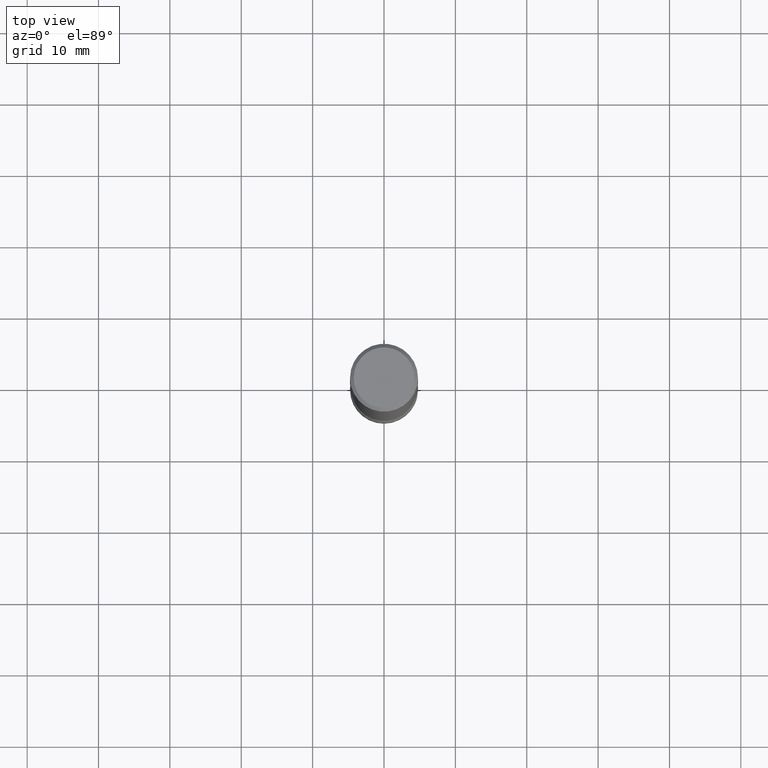
[diagram: clean part render]
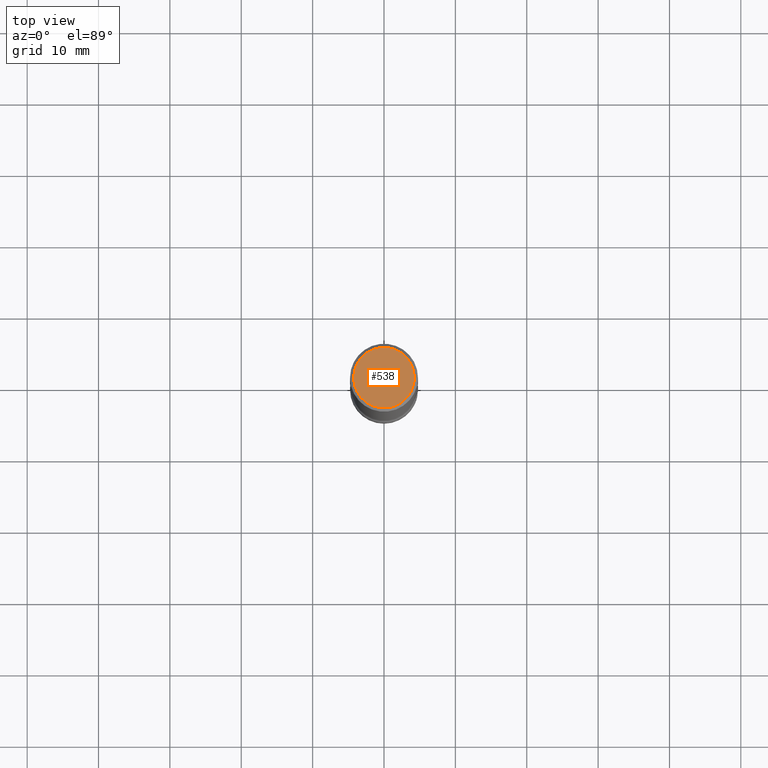
[diagram: same view with one face highlighted and labeled with its STEP entity id]
A machine part, top view. The second image highlights one B-rep face of the part: STEP entity #538.
In plain terms, the highlighted planar face has unit normal (-0, 0, 1).
Its self-contained STEP definition (entity closure, byte-faithful):
#1 = AXIS2_PLACEMENT_3D ( 'NONE', #479, #254, #519 ) ;
#19 = DIRECTION ( 'NONE',  ( -2.438088387897960049E-29, 3.491481338843145188E-15, 1.000000000000000000 ) ) ;
#52 = ORIENTED_EDGE ( 'NONE', *, *, #416, .F. ) ;
#63 = DIRECTION ( 'NONE',  ( 1.000000000000000000, -6.982962677686265922E-15, 4.876176775795935793E-29 ) ) ;
#84 = AXIS2_PLACEMENT_3D ( 'NONE', #330, #19, #63 ) ;
#101 = CARTESIAN_POINT ( 'NONE',  ( -0.1674999999999997602, 1.169646248512447820E-15, -8.167596099458180682E-30 ) ) ;
#105 = VERTEX_POINT ( 'NONE', #282 ) ;
#112 = VERTEX_POINT ( 'NONE', #101 ) ;
#133 = DIRECTION ( 'NONE',  ( 2.445468806185136597E-29, -3.491481338843145583E-15, -1.000000000000000000 ) ) ;
#143 = CIRCLE ( 'NONE', #534, 0.1674999999999997602 ) ;
#223 = EDGE_CURVE ( 'NONE', #112, #105, #367, .T. ) ;
#254 = DIRECTION ( 'NONE',  ( 2.445468806185136597E-29, -3.491481338843145583E-15, -1.000000000000000000 ) ) ;
#282 = CARTESIAN_POINT ( 'NONE',  ( 0.1674999999999997602, -1.252653207992876119E-15, 8.469775550109225372E-30 ) ) ;
#305 = DIRECTION ( 'NONE',  ( -1.000000000000000000, 6.982962677686265922E-15, -4.876176775795935793E-29 ) ) ;
#320 = EDGE_LOOP ( 'NONE', ( #448, #52 ) ) ;
#330 = CARTESIAN_POINT ( 'NONE',  ( 1.169646248512447820E-15, 0.1674999999999997602, -5.826888680111757675E-16 ) ) ;
#367 = CIRCLE ( 'NONE', #1, 0.1674999999999997602 ) ;
#416 = EDGE_CURVE ( 'NONE', #105, #112, #143, .T. ) ;
#448 = ORIENTED_EDGE ( 'NONE', *, *, #223, .F. ) ;
#454 = FACE_OUTER_BOUND ( 'NONE', #320, .T. ) ;
#459 = PLANE ( 'NONE',  #84 ) ;
#479 = CARTESIAN_POINT ( 'NONE',  ( 0.000000000000000000, 0.000000000000000000, 0.000000000000000000 ) ) ;
#519 = DIRECTION ( 'NONE',  ( -1.000000000000000000, 6.982962677686265922E-15, -4.876176775795935793E-29 ) ) ;
#521 = CARTESIAN_POINT ( 'NONE',  ( 0.000000000000000000, 0.000000000000000000, 0.000000000000000000 ) ) ;
#534 = AXIS2_PLACEMENT_3D ( 'NONE', #521, #133, #305 ) ;
#538 = ADVANCED_FACE ( 'NONE', ( #454 ), #459, .T. ) ;